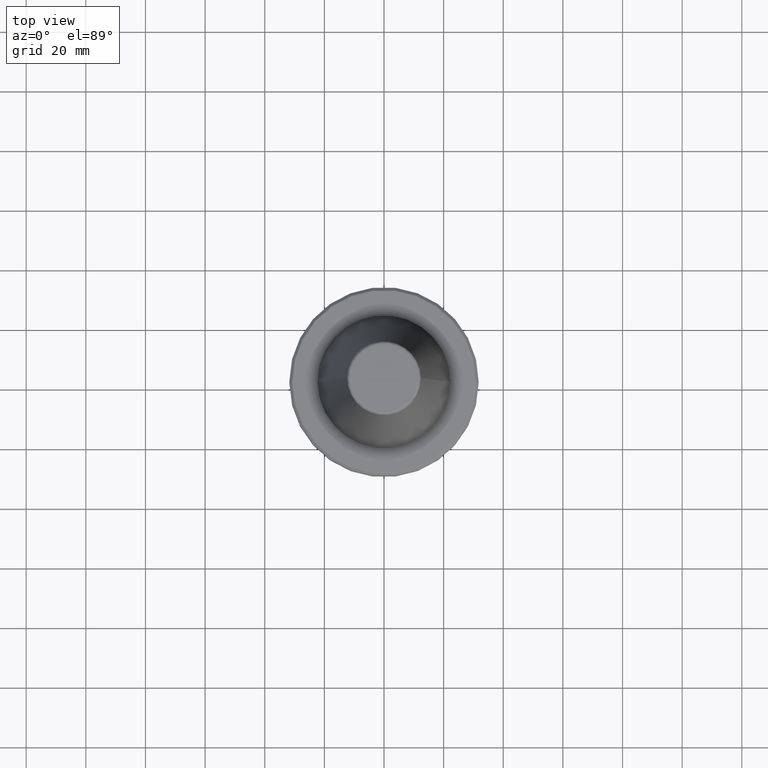
[diagram: clean part render]
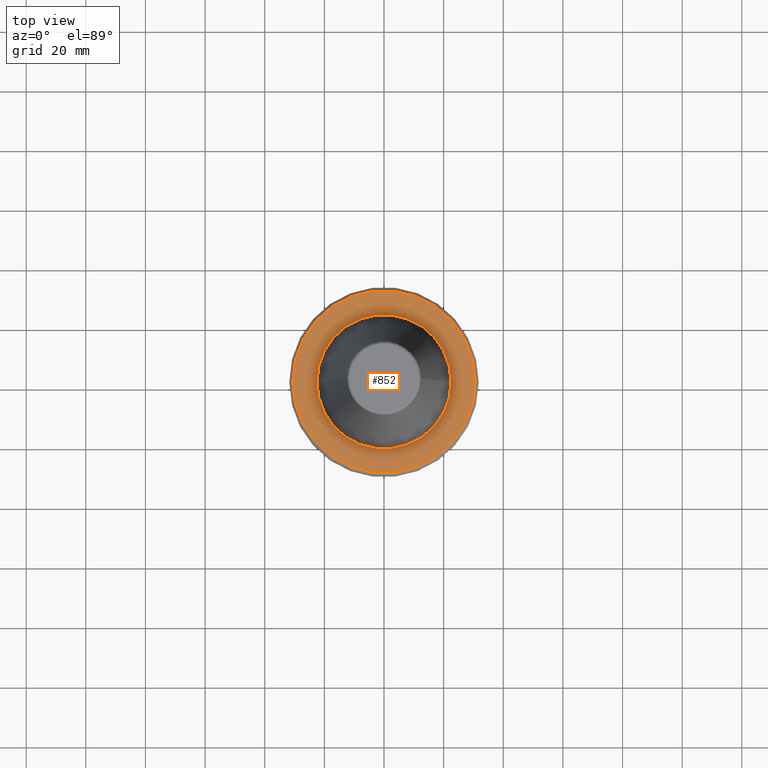
[diagram: same view with one face highlighted and labeled with its STEP entity id]
A machine part, top view. The second image highlights one B-rep face of the part: STEP entity #852.
In plain terms, the highlighted planar face has unit normal (0, -0, 1).
Its self-contained STEP definition (entity closure, byte-faithful):
#21 = FACE_OUTER_BOUND ( 'NONE', #667, .T. ) ;
#119 = CARTESIAN_POINT ( 'NONE',  ( -22.50000000000000000, 2.755455298081544800E-015, -3.199999999999996600 ) ) ;
#122 = AXIS2_PLACEMENT_3D ( 'NONE', #521, #1200, #412 ) ;
#189 = CARTESIAN_POINT ( 'NONE',  ( 30.58431457505076200, 0.0000000000000000000, -3.199999999999994400 ) ) ;
#237 = PLANE ( 'NONE',  #122 ) ;
#251 = DIRECTION ( 'NONE',  ( -0.0000000000000000000, -0.0000000000000000000, 1.000000000000000000 ) ) ;
#353 = DIRECTION ( 'NONE',  ( -0.0000000000000000000, -0.0000000000000000000, 1.000000000000000000 ) ) ;
#359 = VERTEX_POINT ( 'NONE', #835 ) ;
#412 = DIRECTION ( 'NONE',  ( 1.000000000000000000, 0.0000000000000000000, 0.0000000000000000000 ) ) ;
#430 = ORIENTED_EDGE ( 'NONE', *, *, #1136, .T. ) ;
#521 = CARTESIAN_POINT ( 'NONE',  ( 0.0000000000000000000, 0.0000000000000000000, -3.200000000000000200 ) ) ;
#552 = CARTESIAN_POINT ( 'NONE',  ( 0.0000000000000000000, 0.0000000000000000000, -3.199999999999994400 ) ) ;
#647 = DIRECTION ( 'NONE',  ( 1.000000000000000000, 0.0000000000000000000, 0.0000000000000000000 ) ) ;
#650 = VERTEX_POINT ( 'NONE', #1175 ) ;
#667 = EDGE_LOOP ( 'NONE', ( #430, #829 ) ) ;
#730 = VERTEX_POINT ( 'NONE', #119 ) ;
#732 = VERTEX_POINT ( 'NONE', #189 ) ;
#819 = CARTESIAN_POINT ( 'NONE',  ( 0.0000000000000000000, 0.0000000000000000000, -3.199999999999994400 ) ) ;
#829 = ORIENTED_EDGE ( 'NONE', *, *, #1088, .T. ) ;
#835 = CARTESIAN_POINT ( 'NONE',  ( 22.50000000000000000, 0.0000000000000000000, -3.199999999999996600 ) ) ;
#852 = ADVANCED_FACE ( 'NONE', ( #21, #1042 ), #237, .T. ) ;
#876 = CARTESIAN_POINT ( 'NONE',  ( 0.0000000000000000000, 0.0000000000000000000, -3.199999999999994400 ) ) ;
#918 = DIRECTION ( 'NONE',  ( 1.000000000000000000, 0.0000000000000000000, 0.0000000000000000000 ) ) ;
#930 = EDGE_LOOP ( 'NONE', ( #1160, #1064 ) ) ;
#939 = CARTESIAN_POINT ( 'NONE',  ( 0.0000000000000000000, 0.0000000000000000000, -3.199999999999994400 ) ) ;
#993 = CIRCLE ( 'NONE', #1114, 22.50000000000000000 ) ;
#998 = AXIS2_PLACEMENT_3D ( 'NONE', #819, #251, #918 ) ;
#1028 = DIRECTION ( 'NONE',  ( -0.0000000000000000000, -0.0000000000000000000, 1.000000000000000000 ) ) ;
#1035 = DIRECTION ( 'NONE',  ( 1.000000000000000000, 0.0000000000000000000, 0.0000000000000000000 ) ) ;
#1042 = FACE_BOUND ( 'NONE', #930, .T. ) ;
#1064 = ORIENTED_EDGE ( 'NONE', *, *, #1159, .F. ) ;
#1081 = AXIS2_PLACEMENT_3D ( 'NONE', #552, #1242, #647 ) ;
#1087 = EDGE_CURVE ( 'NONE', #359, #730, #993, .T. ) ;
#1088 = EDGE_CURVE ( 'NONE', #650, #732, #1232, .T. ) ;
#1102 = AXIS2_PLACEMENT_3D ( 'NONE', #876, #1028, #1239 ) ;
#1114 = AXIS2_PLACEMENT_3D ( 'NONE', #939, #353, #1035 ) ;
#1136 = EDGE_CURVE ( 'NONE', #732, #650, #1199, .T. ) ;
#1159 = EDGE_CURVE ( 'NONE', #730, #359, #1166, .T. ) ;
#1160 = ORIENTED_EDGE ( 'NONE', *, *, #1087, .F. ) ;
#1166 = CIRCLE ( 'NONE', #998, 22.50000000000000000 ) ;
#1175 = CARTESIAN_POINT ( 'NONE',  ( -30.58431457505076200, 3.762817415969875600E-015, -3.199999999999994400 ) ) ;
#1199 = CIRCLE ( 'NONE', #1102, 30.58431457505076200 ) ;
#1200 = DIRECTION ( 'NONE',  ( 0.0000000000000000000, -0.0000000000000000000, 1.000000000000000000 ) ) ;
#1232 = CIRCLE ( 'NONE', #1081, 30.58431457505076200 ) ;
#1239 = DIRECTION ( 'NONE',  ( 1.000000000000000000, 0.0000000000000000000, 0.0000000000000000000 ) ) ;
#1242 = DIRECTION ( 'NONE',  ( -0.0000000000000000000, -0.0000000000000000000, 1.000000000000000000 ) ) ;